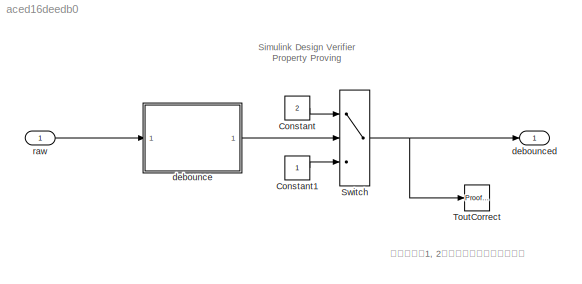
MODEL slx_aced16deedb0
KIND model
CONFIG AbsTol = auto
CONFIG FixedStep = auto
CONFIG MaxStep = auto
CONFIG MinStep = auto
CONFIG RelTol = 1e-3
CONFIG SampleTimeConstraint = Unconstrained
CONFIG Solver = FixedStepDiscrete
CONFIG SolverMode = SingleTasking
CONFIG SolverName = FixedStepDiscrete
CONFIG StartTime = 0.0
CONFIG StopTime = 10.0
BLOCK [Constant] Constant
  OutDataTypeStr = uint8
  Value = 2
BLOCK [Constant] Constant1
  OutDataTypeStr = uint8
BLOCK [Switch] Switch
  Criteria = u2 ~= 0
  InputSameDT = off
  SaturateOnIntegerOverflow = off
BLOCK [Reference] ToutCorrect  REF=sldvlib/Objectives and Constraints/Proof Objective
  AttributesFormatString = %<intervals>
  Ports = [1]
  SourceBlock = sldvlib/Objectives and Constraints/Proof Objective
  SourceType = Design Verifier Proof Objective
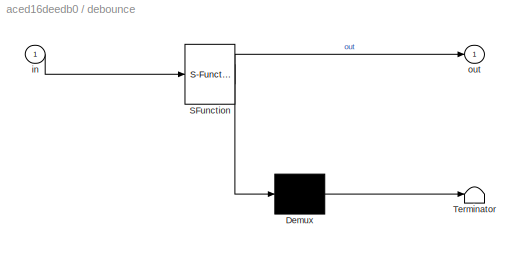
BLOCK [SubSystem] debounce
  ErrorFcn = Stateflow.Translate.translate
  PermitHierarchicalResolution = ExplicitOnly
  Ports = [1, 1]
  RequestExecContextInheritance = off
  SFBlockType = Chart
  TreatAsAtomicUnit = on
  Variant = off
BLOCK [Demux] debounce/ Demux 
  Outputs = 1
  Ports = [1, 1]
BLOCK [S-Function] debounce/ SFunction 
  EnableBusSupport = on
  FunctionName = sf_sfun
  PortCounts = [1 2]
  Ports = [1, 2]
  SFunctionDeploymentMode = off
  Tag = Stateflow S-Function sldv_property2 1
BLOCK [Terminator] debounce/ Terminator 
BLOCK [Inport] debounce/in
  IconDisplay = Port number
BLOCK [Outport] debounce/out
  IconDisplay = Port number
BLOCK [Outport] debounced
  IconDisplay = Port number
  OutDataTypeStr = uint8
BLOCK [Inport] raw
  IconDisplay = Port number
  OutDataTypeStr = boolean
ANNOTATION (root): Simulink Design Verifier Property Proving
ANNOTATION (root): 信号範囲が1, 2であることを証明します。
LINE Constant1:1 -> Switch:3
LINE Constant:1 -> Switch:1
NET Switch:1 -> ToutCorrect:1, debounced:1
LINE debounce:1 -> Switch:2
LINE raw:1 -> debounce:1
note: NET lines group one-source signal fan-out (src -> all destinations, sorted); 1:1 wires keep LINE
CHART debounce states=2 transitions=3
  STATE_LABEL 'Off\nout = 0;'
  STATE_LABEL 'On\nout = 1;'
